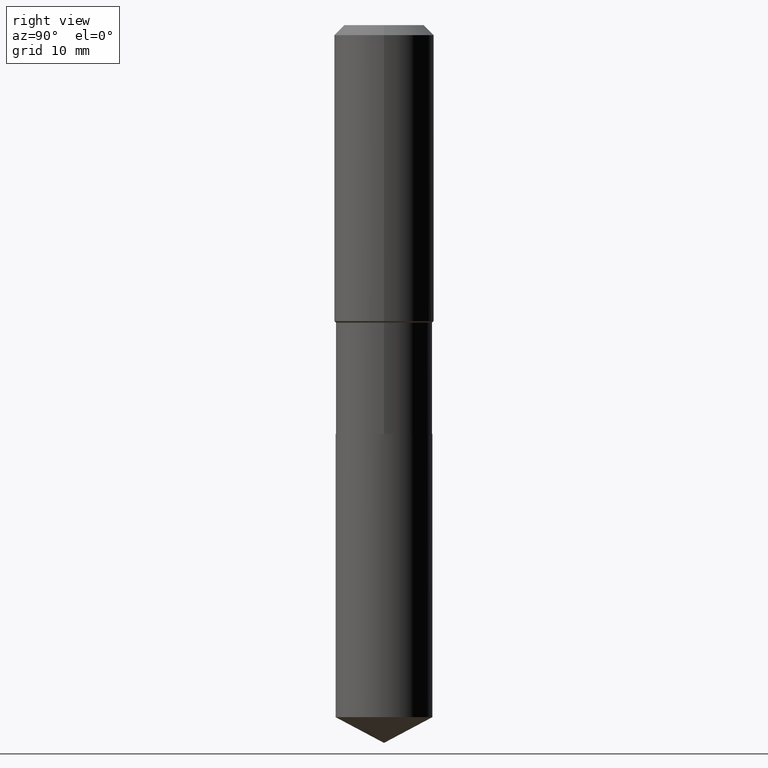
[diagram: clean part render]
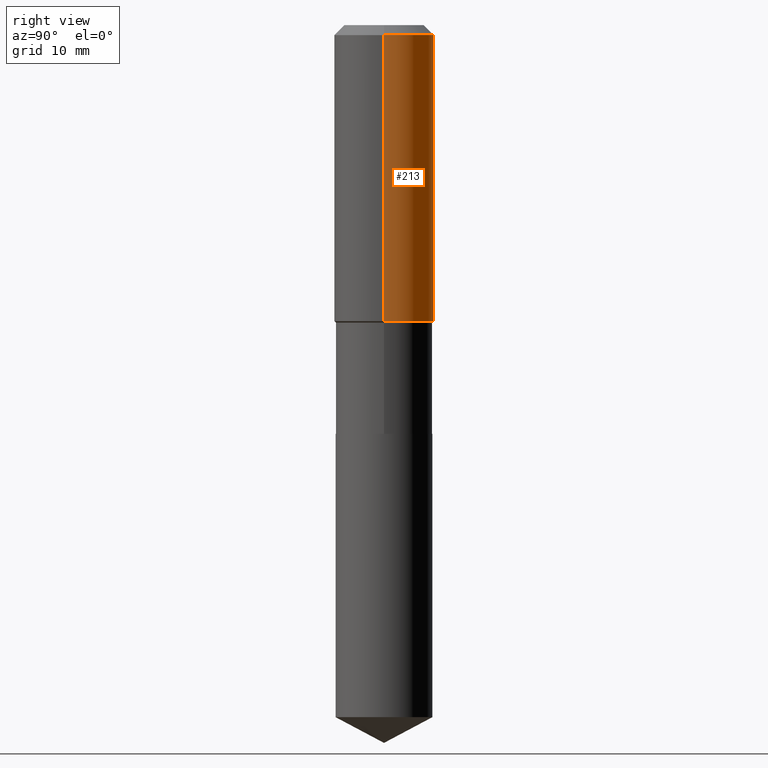
[diagram: same view with one face highlighted and labeled with its STEP entity id]
A machine part, right view. The second image highlights one B-rep face of the part: STEP entity #213.
In plain terms, the highlighted cylindrical surface (partial cylindrical patch) has radius 7.9997 mm, axis along (-0, 0, 1).
Its self-contained STEP definition (entity closure, byte-faithful):
#29 = AXIS2_PLACEMENT_3D ( 'NONE', #161, #352, #241 ) ;
#44 = VERTEX_POINT ( 'NONE', #75 ) ;
#49 = DIRECTION ( 'NONE',  ( 1.000000000000000000, -6.982962677686266711E-15, 0.000000000000000000 ) ) ;
#64 = EDGE_CURVE ( 'NONE', #414, #190, #403, .T. ) ;
#75 = CARTESIAN_POINT ( 'NONE',  ( -0.3149500000000000077, -1.131669549400917718E-15, -0.06299000000000036514 ) ) ;
#79 = DIRECTION ( 'NONE',  ( -2.445468806185136597E-29, 3.491481338843145583E-15, 1.000000000000000000 ) ) ;
#116 = ORIENTED_EDGE ( 'NONE', *, *, #322, .F. ) ;
#123 = DIRECTION ( 'NONE',  ( -2.445468806185136877E-29, 3.491481338843145188E-15, 1.000000000000000000 ) ) ;
#125 = DIRECTION ( 'NONE',  ( -2.445468806185136597E-29, 3.491481338843145583E-15, 1.000000000000000000 ) ) ;
#134 = CYLINDRICAL_SURFACE ( 'NONE', #29, 0.3149500000000001743 ) ;
#138 = EDGE_CURVE ( 'NONE', #224, #44, #163, .T. ) ;
#161 = CARTESIAN_POINT ( 'NONE',  ( 0.000000000000000000, 0.000000000000000000, 0.000000000000000000 ) ) ;
#163 = CIRCLE ( 'NONE', #411, 0.3149500000000000077 ) ;
#170 = ORIENTED_EDGE ( 'NONE', *, *, #64, .T. ) ;
#190 = VERTEX_POINT ( 'NONE', #387 ) ;
#213 = ADVANCED_FACE ( 'NONE', ( #472 ), #134, .T. ) ;
#215 = AXIS2_PLACEMENT_3D ( 'NONE', #456, #79, #408 ) ;
#224 = VERTEX_POINT ( 'NONE', #289 ) ;
#240 = LINE ( 'NONE', #313, #462 ) ;
#241 = DIRECTION ( 'NONE',  ( 1.000000000000000000, -6.982962677686265922E-15, 4.876176775795935232E-29 ) ) ;
#247 = LINE ( 'NONE', #468, #316 ) ;
#256 = CARTESIAN_POINT ( 'NONE',  ( 0.3149500000000002298, -8.718403477158269000E-15, -1.867149999999999421 ) ) ;
#289 = CARTESIAN_POINT ( 'NONE',  ( 0.3149500000000000077, -2.419212504871020909E-15, -0.06299000000000036514 ) ) ;
#293 = EDGE_CURVE ( 'NONE', #190, #44, #240, .T. ) ;
#313 = CARTESIAN_POINT ( 'NONE',  ( -0.3149500000000001743, 2.237854346276436774E-15, -1.549218606675783237E-29 ) ) ;
#316 = VECTOR ( 'NONE', #439, 39.37007874015748143 ) ;
#322 = EDGE_CURVE ( 'NONE', #414, #224, #247, .T. ) ;
#352 = DIRECTION ( 'NONE',  ( -2.445468806185136597E-29, 3.491481338843145583E-15, 1.000000000000000000 ) ) ;
#354 = ORIENTED_EDGE ( 'NONE', *, *, #293, .T. ) ;
#387 = CARTESIAN_POINT ( 'NONE',  ( -0.3149500000000002298, -4.281265035544540777E-15, -1.867149999999999421 ) ) ;
#403 = CIRCLE ( 'NONE', #215, 0.3149500000000002298 ) ;
#408 = DIRECTION ( 'NONE',  ( 1.000000000000000000, -6.982962677686268288E-15, 0.000000000000000000 ) ) ;
#411 = AXIS2_PLACEMENT_3D ( 'NONE', #430, #125, #49 ) ;
#414 = VERTEX_POINT ( 'NONE', #256 ) ;
#430 = CARTESIAN_POINT ( 'NONE',  ( 1.540400801016026329E-30, -2.199284095337310135E-16, -0.06299000000000036514 ) ) ;
#436 = ORIENTED_EDGE ( 'NONE', *, *, #138, .F. ) ;
#439 = DIRECTION ( 'NONE',  ( -2.445468806185136877E-29, 3.491481338843145188E-15, 1.000000000000000000 ) ) ;
#456 = CARTESIAN_POINT ( 'NONE',  ( 4.566057081468576714E-29, -6.519119381820977551E-15, -1.867149999999999421 ) ) ;
#462 = VECTOR ( 'NONE', #123, 39.37007874015748143 ) ;
#465 = EDGE_LOOP ( 'NONE', ( #170, #354, #436, #116 ) ) ;
#468 = CARTESIAN_POINT ( 'NONE',  ( 0.3149500000000001743, -2.199284095337290660E-15, 1.535751875536930690E-29 ) ) ;
#472 = FACE_OUTER_BOUND ( 'NONE', #465, .T. ) ;